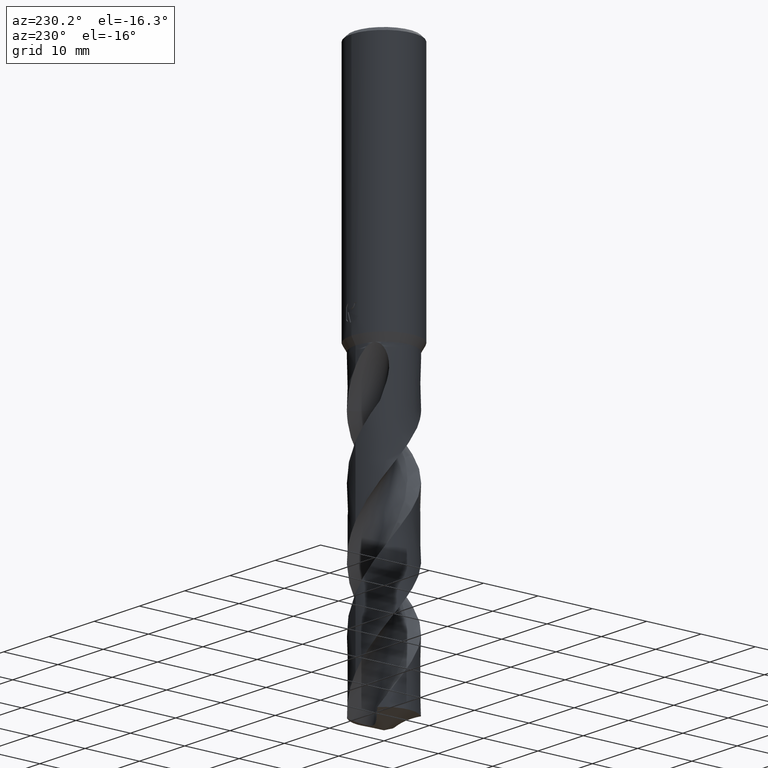
[diagram: clean part render]
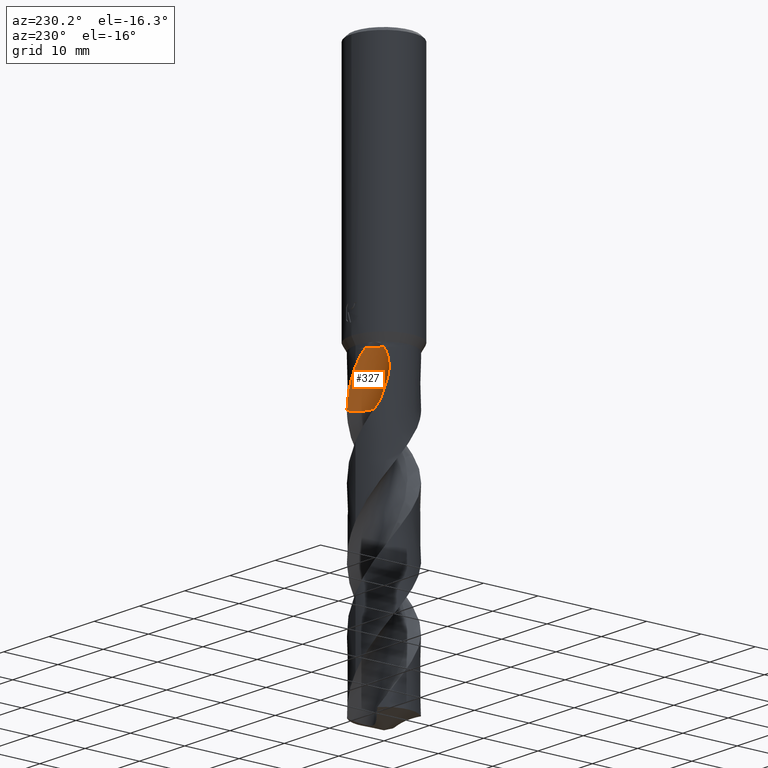
[diagram: same view with one face highlighted and labeled with its STEP entity id]
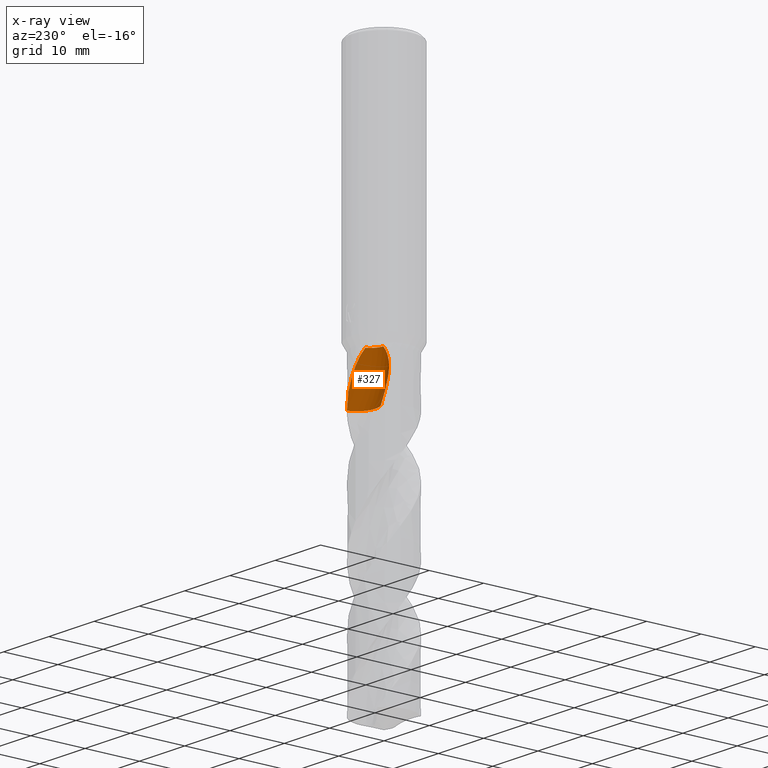
[diagram: x-ray of the same camera — body ghosted, the highlighted face saturated]
A machine part, auxiliary view. The second image highlights one B-rep face of the part: STEP entity #327.
The next image is the same camera in x-ray: the body ghosted, the highlighted face saturated — about 0% of this face is hidden behind the body in this view.
In plain terms, the highlighted face is a SurfaceOfRevolution surface.
Its self-contained STEP definition (entity closure, byte-faithful):
#305=VERTEX_POINT('',#820);
#327=ADVANCED_FACE('',(#843),#844,.F.);
#339=EDGE_CURVE('',#679,#459,#856,.T.);
#387=VERTEX_POINT('',#906);
#459=VERTEX_POINT('',#986);
#665=VERTEX_POINT('',#1214);
#675=EDGE_CURVE('',#765,#387,#1224,.T.);
#679=VERTEX_POINT('',#1229);
#681=EDGE_CURVE('',#665,#765,#1231,.T.);
#695=EDGE_CURVE('',#305,#679,#1247,.T.);
#699=EDGE_CURVE('',#459,#715,#1251,.T.);
#715=VERTEX_POINT('',#1268);
#731=EDGE_CURVE('',#305,#665,#1288,.T.);
#761=EDGE_CURVE('',#387,#715,#1321,.T.);
#765=VERTEX_POINT('',#1325);
#820=CARTESIAN_POINT('',(3.34534853535633,4.04601659429047,-54.943));
#843=FACE_OUTER_BOUND('',#1545,.T.);
#844=SURFACE_OF_REVOLUTION('',#1546,#1547);
#856=CIRCLE('',#1642,3.5);
#906=CARTESIAN_POINT('',(-3.97808055895845,3.42583202688585,-47.0));
#986=CARTESIAN_POINT('',(-2.47487373408221,2.6001262659178,-54.943));
#1214=CARTESIAN_POINT('',(-1.55507784581112E-012,5.24990444984121,-49.3623831494526));
#1224=B_SPLINE_CURVE_WITH_KNOTS('',3,(#3622,#3623,#3624,#3625,#3626,#3627,#3628,#3629,#3630,#3631,#3632,#3633),.UNSPECIFIED.,.F.,.F.,(4,2,2,2,2,4),(0.0,1.13958031297381,2.18163180374913,3.23313880667438,3.87602636836574,4.54611177569092),.UNSPECIFIED.);
#1229=CARTESIAN_POINT('',(-0.416085661035493,1.59980400787186,-54.943));
#1231=B_SPLINE_CURVE_WITH_KNOTS('',3,(#3641,#3642,#3643,#3644,#3645,#3646,#3647,#3648,#3649,#3650,#3651,#3652,#3653,#3654),.UNSPECIFIED.,.F.,.F.,(4,2,2,2,2,2,4),(0.0,2.5722121825977,3.9766924607289,5.24878709748098,6.72663681603435,8.5018608177966,9.41417577192885),.UNSPECIFIED.);
#1247=CIRCLE('',#3843,3.5);
#1251=CIRCLE('',#3849,22.8126144757953);
#1268=CARTESIAN_POINT('',(-4.27153477260094,3.05213710972693,-52.06834233837));
#1288=B_SPLINE_CURVE_WITH_KNOTS('',3,(#3949,#3950,#3951,#3952,#3953,#3954,#3955,#3956,#3957,#3958,#3959,#3960,#3961,#3962),.UNSPECIFIED.,.F.,.F.,(4,2,2,2,2,2,4),(0.0,2.5722121825977,3.9766924607289,5.24878709748098,6.72663681603435,8.5018608177966,9.41417577192885),.UNSPECIFIED.);
#1321=B_SPLINE_CURVE_WITH_KNOTS('',3,(#5232,#5233,#5234,#5235,#5236,#5237,#5238,#5239,#5240,#5241),.UNSPECIFIED.,.F.,.F.,(4,2,2,2,4),(0.0,0.98487104152825,2.36181917694875,3.08766115270219,3.8453558005519),.UNSPECIFIED.);
#1325=CARTESIAN_POINT('',(-1.78826262263326,4.93594639380259,-47.0));
#1545=EDGE_LOOP('',(#5377,#5378,#5379,#5380,#5381,#5382,#5383));
#1546=(B_SPLINE_CURVE(3,(#5385,#5386,#5387,#5388,#5389,#5390,#5391,#5392,#5393),.UNSPECIFIED.,.F.,.F.)B_SPLINE_CURVE_WITH_KNOTS((4,1,3,1,4),(-2.85637291521931,-2.55358779342299,-2.25080267162666,-1.94801754983033,-1.645232428034),.UNSPECIFIED.)RATIONAL_B_SPLINE_CURVE((1.09167882998122,1.03055960999374,0.969440390006261,1.03055960999374,1.09167882998122,1.03055960999374,0.969440390006261,1.03055960999374,1.09167882998122))BOUNDED_CURVE()REPRESENTATION_ITEM('')GEOMETRIC_REPRESENTATION_ITEM()CURVE());
#1547=AXIS1_PLACEMENT('',#5400,#5401);
#1642=AXIS2_PLACEMENT_3D('',#5403,#5404,#5405);
#3622=CARTESIAN_POINT('',(-1.63999516186185,5.2999,-47.0));
#3623=CARTESIAN_POINT('',(-1.76052304776197,4.93966850834784,-47.0));
#3624=CARTESIAN_POINT('',(-1.9443709224734,4.60666086251076,-46.9999999999855));
#3625=CARTESIAN_POINT('',(-2.42170221921102,4.06012696038315,-46.9999999999855));
#3626=CARTESIAN_POINT('',(-2.69624092720102,3.84850686180772,-47.0000000000008));
#3627=CARTESIAN_POINT('',(-3.3205518648126,3.54073805583287,-47.0000000000008));
#3628=CARTESIAN_POINT('',(-3.65981357641899,3.4510862943201,-47.0000000000001));
#3629=CARTESIAN_POINT('',(-4.2220213834813,3.4061909422973,-47.0000000000001));
#3630=CARTESIAN_POINT('',(-4.43647779411803,3.41243852712337,-47.0));
#3631=CARTESIAN_POINT('',(-4.8701409829678,3.46801668786865,-47.0));
#3632=CARTESIAN_POINT('',(-5.08810638298472,3.51901008139378,-47.0));
#3633=CARTESIAN_POINT('',(-5.2999,3.5895424336459,-47.0));
#3641=CARTESIAN_POINT('',(3.34534853535633,4.04601659429047,-54.943));
#3642=CARTESIAN_POINT('',(2.99904503761377,4.33234727308404,-54.2127737655889));
#3643=CARTESIAN_POINT('',(2.60087190611768,4.58687743287599,-53.531967187499));
#3644=CARTESIAN_POINT('',(1.90657483844975,4.89885678705966,-52.394639285603));
#3645=CARTESIAN_POINT('',(1.65673416112167,4.98860137416888,-51.9944906543918));
#3646=CARTESIAN_POINT('',(1.17307520400491,5.12272691425403,-51.2199114976059));
#3647=CARTESIAN_POINT('',(0.941416254206849,5.17011301279624,-50.8490907964829));
#3648=CARTESIAN_POINT('',(0.439974530914716,5.2385019893137,-50.0498802626398));
#3649=CARTESIAN_POINT('',(0.166002776598292,5.25455766442219,-49.6152343165837));
#3650=CARTESIAN_POINT('',(-0.44241735108971,5.24175882451053,-48.6853873229795));
#3651=CARTESIAN_POINT('',(-0.80314817645383,5.20217489818181,-48.1562970089003));
#3652=CARTESIAN_POINT('',(-1.36730123477762,5.07252978062317,-47.4487499538275));
#3653=CARTESIAN_POINT('',(-1.57370980546994,5.01367796398129,-47.2103376142139));
#3654=CARTESIAN_POINT('',(-1.78826262263326,4.93594639380259,-47.0));
#3843=AXIS2_PLACEMENT_3D('',#5858,#5859,#5860);
#3849=AXIS2_PLACEMENT_3D('',#5864,#5865,#5866);
#3949=CARTESIAN_POINT('',(3.34534853535633,4.04601659429047,-54.943));
#3950=CARTESIAN_POINT('',(2.99904503761377,4.33234727308404,-54.2127737655889));
#3951=CARTESIAN_POINT('',(2.60087190611768,4.58687743287599,-53.531967187499));
#3952=CARTESIAN_POINT('',(1.90657483844975,4.89885678705966,-52.394639285603));
#3953=CARTESIAN_POINT('',(1.65673416112167,4.98860137416888,-51.9944906543918));
#3954=CARTESIAN_POINT('',(1.17307520400491,5.12272691425403,-51.2199114976059));
#3955=CARTESIAN_POINT('',(0.941416254206849,5.17011301279624,-50.8490907964829));
#3956=CARTESIAN_POINT('',(0.439974530914716,5.2385019893137,-50.0498802626398));
#3957=CARTESIAN_POINT('',(0.166002776598292,5.25455766442219,-49.6152343165837));
#3958=CARTESIAN_POINT('',(-0.44241735108971,5.24175882451053,-48.6853873229795));
#3959=CARTESIAN_POINT('',(-0.80314817645383,5.20217489818181,-48.1562970089003));
#3960=CARTESIAN_POINT('',(-1.36730123477762,5.07252978062317,-47.4487499538275));
#3961=CARTESIAN_POINT('',(-1.57370980546994,5.01367796398129,-47.2103376142139));
#3962=CARTESIAN_POINT('',(-1.78826262263326,4.93594639380259,-47.0));
#5232=CARTESIAN_POINT('',(-3.97808055895845,3.42583202688585,-47.0));
#5233=CARTESIAN_POINT('',(-4.10779716616614,3.27520568979706,-47.2612658807398));
#5234=CARTESIAN_POINT('',(-4.21001055878961,3.13923892593506,-47.5859758983986));
#5235=CARTESIAN_POINT('',(-4.39342544874017,2.87985998855061,-48.4798560107761));
#5236=CARTESIAN_POINT('',(-4.45422222249671,2.77874868361555,-49.1116932068821));
#5237=CARTESIAN_POINT('',(-4.45981683268397,2.76975816474669,-50.1905728779631));
#5238=CARTESIAN_POINT('',(-4.44556898911654,2.7931087293885,-50.5630636028889));
#5239=CARTESIAN_POINT('',(-4.38482803400108,2.88757837350027,-51.3168365015278));
#5240=CARTESIAN_POINT('',(-4.33708288348503,2.9603998411866,-51.6955249257101));
#5241=CARTESIAN_POINT('',(-4.27153477260094,3.05213710972693,-52.06834233837));
#5377=ORIENTED_EDGE('',*,*,#761,.F.);
#5378=ORIENTED_EDGE('',*,*,#675,.F.);
#5379=ORIENTED_EDGE('',*,*,#681,.F.);
#5380=ORIENTED_EDGE('',*,*,#731,.F.);
#5381=ORIENTED_EDGE('',*,*,#695,.T.);
#5382=ORIENTED_EDGE('',*,*,#339,.T.);
#5383=ORIENTED_EDGE('',*,*,#699,.T.);
#5385=CARTESIAN_POINT('',(-2.47487373408221,2.6001262659178,-54.943));
#5386=CARTESIAN_POINT('',(-1.99012138973626,2.11536659273097,-54.943));
#5387=CARTESIAN_POINT('',(-0.729627050454937,1.42656627266461,-54.943));
#5388=CARTESIAN_POINT('',(0.698826420945129,1.57760448084017,-54.943));
#5389=CARTESIAN_POINT('',(1.33273102699529,1.83864418380791,-54.943));
#5390=CARTESIAN_POINT('',(1.96663563304545,2.09968388677565,-54.943));
#5391=CARTESIAN_POINT('',(3.08722560041331,2.99833286458526,-54.943));
#5392=CARTESIAN_POINT('',(3.49716305727492,4.37501116460514,-54.943));
#5393=CARTESIAN_POINT('',(3.49998897239181,5.06055386225485,-54.943));
#5400=CARTESIAN_POINT('',(-1.77968448293552,25.375,-56.0553028018347));
#5401=DIRECTION('',(0.847998304005088,-0.0,0.52999894000318));
#5403=CARTESIAN_POINT('',(1.87083351824082E-005,5.07498129166482,-54.943));
#5404=DIRECTION('',(0.0,0.0,-1.0));
#5405=DIRECTION('',(0.707101435927723,0.707112126404966,0.0));
#5858=CARTESIAN_POINT('',(1.87083351824082E-005,5.07498129166482,-54.943));
#5859=DIRECTION('',(0.0,0.0,-1.0));
#5860=DIRECTION('',(0.707101435927723,0.707112126404966,0.0));
#5864=CARTESIAN_POINT('',(-1.77968448293552,25.375,-56.0553028018347));
#5865=DIRECTION('',(-0.847998304005088,0.0,-0.52999894000318));
#5866=DIRECTION('',(-0.0535598122533606,-0.994880693138896,0.085695699605377));